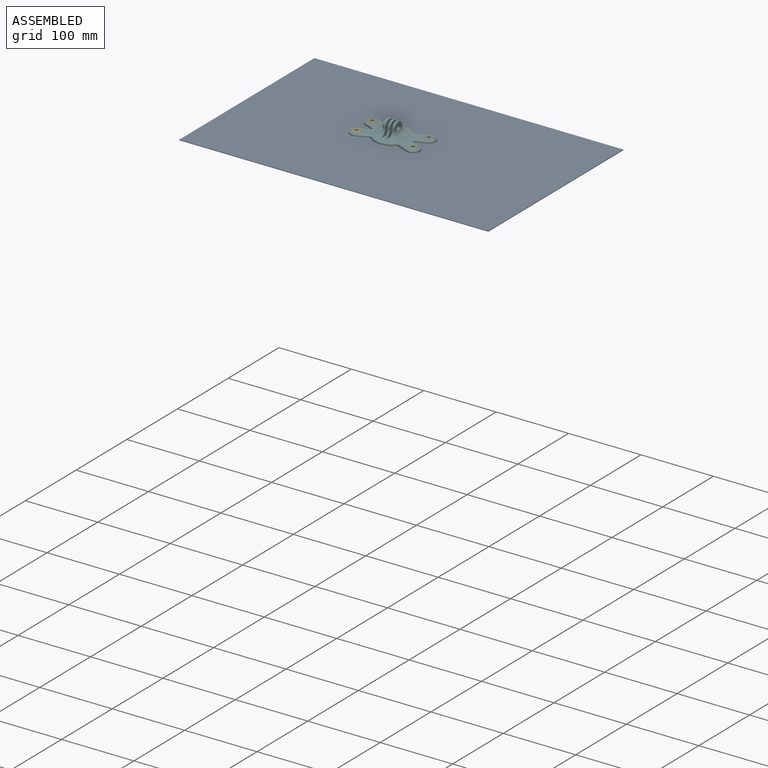
[diagram: assembled view]
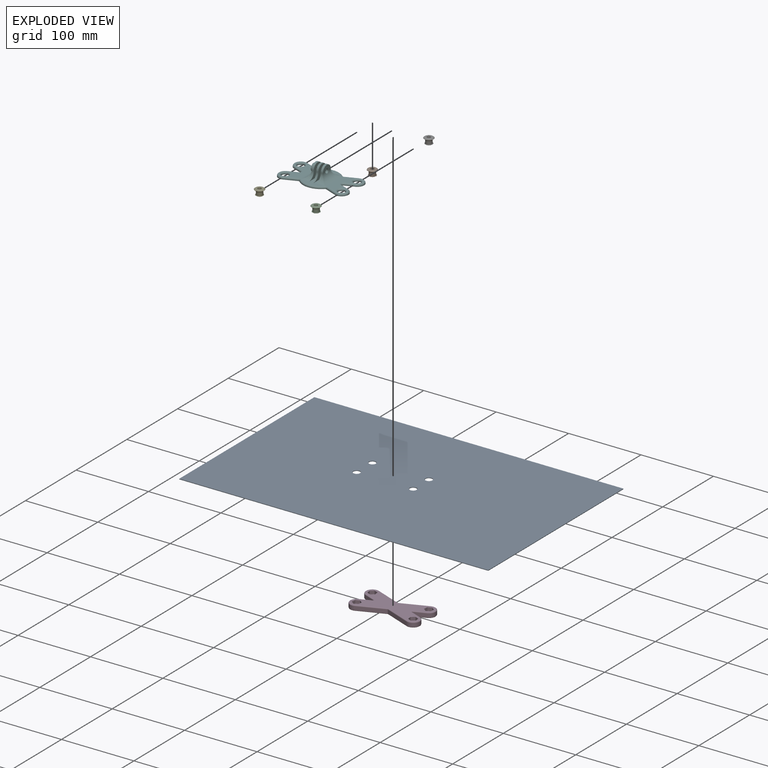
[diagram: exploded view]
GUIDED TOUR — MATED ASSEMBLY (Onshape document 496a4daa4ad05228f871a240, AutoMate assembly 496a4daa4ad05228f871a240_1194d34ab94c4ba6c3498e6a_b3956954b5be397ef15fa4f2_default)

This assembly has 7 components, labeled P0..P6 below (a component is one placed occurrence of a part; the same part can appear more than once), held together by 6 mates. A mate is a constraint between two components; its type names the relative motion it leaves free:
  PLANAR — leaves sliding in the plane through the listed point (normal = the listed direction) and rotation about that normal free,
  SLIDER — leaves translation along the listed axis free.
Axis/direction vectors are unit vectors and 'through' points are millimeter coordinates, both in the assembly's world frame.

MATES
  1. PLANAR "Planar 2": P0 <-> P3, direction (0.000, 0.000, -1.000) through (39.73, -29.23, -52.37) mm
  2. PLANAR "Planar 1": P0 <-> P5, direction (0.000, 0.000, 1.000) through (39.73, -29.23, -51.49) mm
  3. SLIDER "Slider 4": P6 <-> P5, axis (0.000, 0.000, 1.000) through (58.59, -1.88, -48.49) mm
  4. SLIDER "Slider 5": P5 <-> P2, axis (0.000, 0.000, 1.000) through (58.59, -32.88, -48.49) mm
  5. SLIDER "Slider 3": P5 <-> P4, axis (0.000, 0.000, 1.000) through (-19.41, -32.88, -48.49) mm
  6. SLIDER "Slider 2": P1 <-> P5, axis (0.000, 0.000, 1.000) through (-19.41, -1.88, -48.49) mm

ASSEMBLY ORDER
  1. P6 — the base component [order verified]
  2. P1 [order verified]
  3. P0 [order verified]
  4. P4 [order verified]
  5. P2 [order verified]
  6. P3 [order verified]
  7. P5 [order verified]
(P0, P3 verified with a relaxed clearance tolerance: the source model stores slight part interference there.)
Order-tag legend:
  [order verified] — this step's position reverses a verified removal order: the component was checked to insert without passing through the ones already placed.

Of the 7 components, 1 carries the full construction recipe — the FeatureScript program that regenerates the part's solid from scratch; the rest are supplied as boundary geometry only.
Each toured component is shown spotlighted twice — in the assembled view, then in the exploded view, where a leader line traces a displaced component back to its assembled socket (saturated green if recipe-attached, orange if geometry-only; every other component desaturated gray) — followed by its recipe or geometry summary and the mates that hold it.
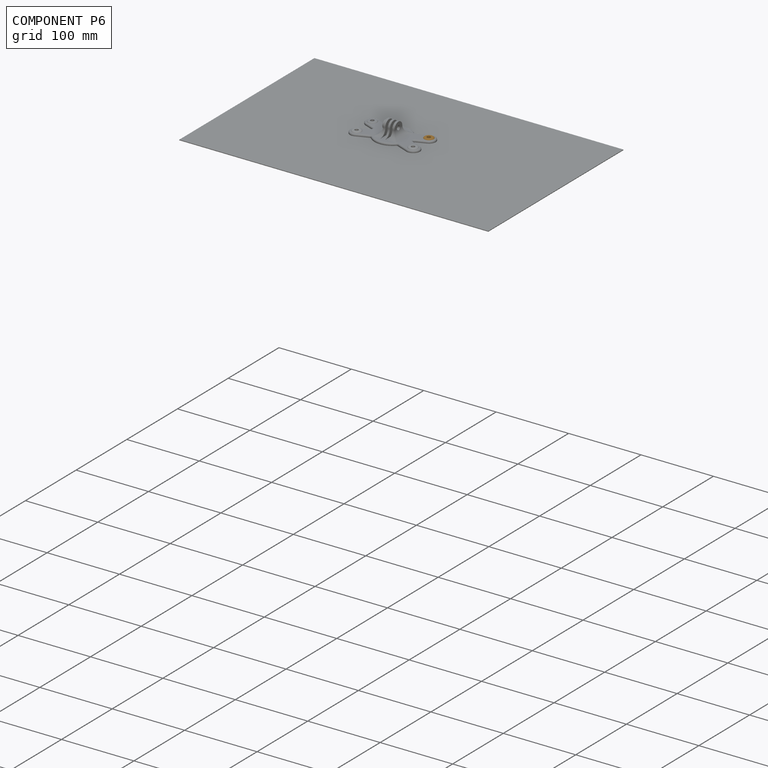
[diagram: component P6 — assembled]
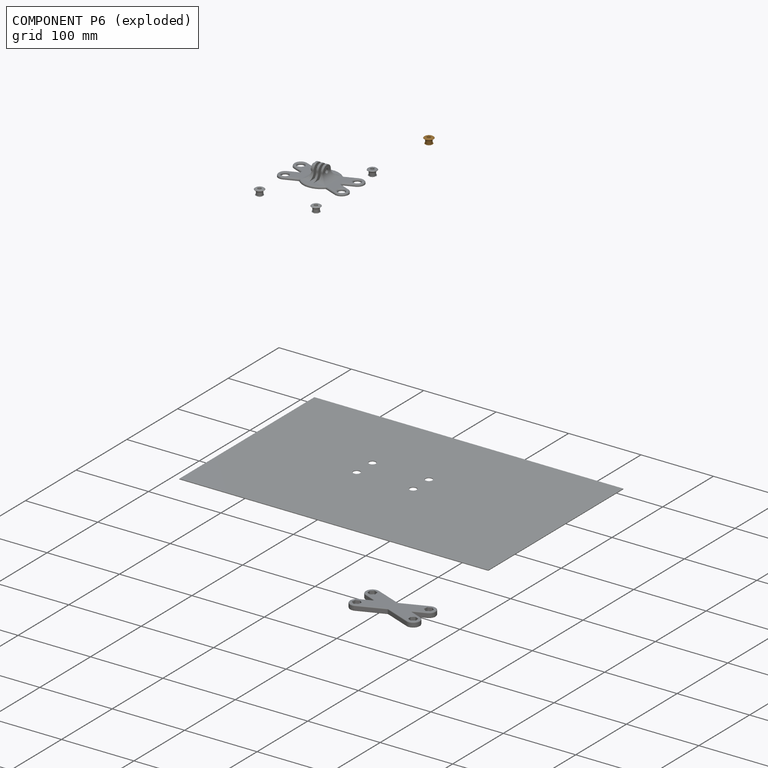
[diagram: component P6 — exploded]
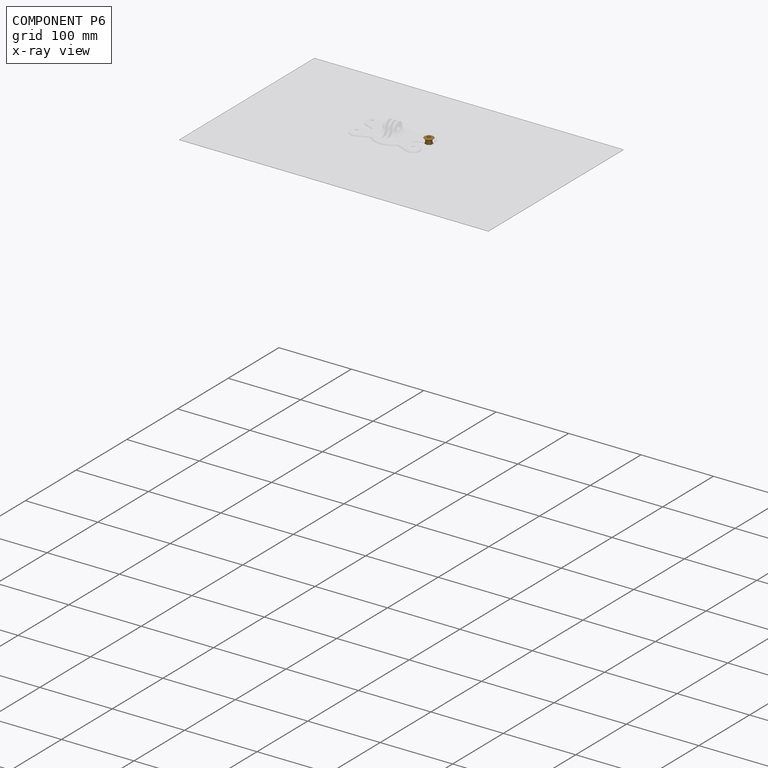
[diagram: component P6 — x-ray view]
COMPONENT P6 — geometry summary (no construction recipe available for this part):
  bounding box: 15.7 x 15.7 x 8.5 mm
  B-rep topology: 1 solid, 11 faces, 40 edges
  volume: 450 mm^3 (22% of its bounding box)
  symmetry: mirror-symmetric across its x mid-plane
Held by: SLIDER mate "Slider 4" to P5.
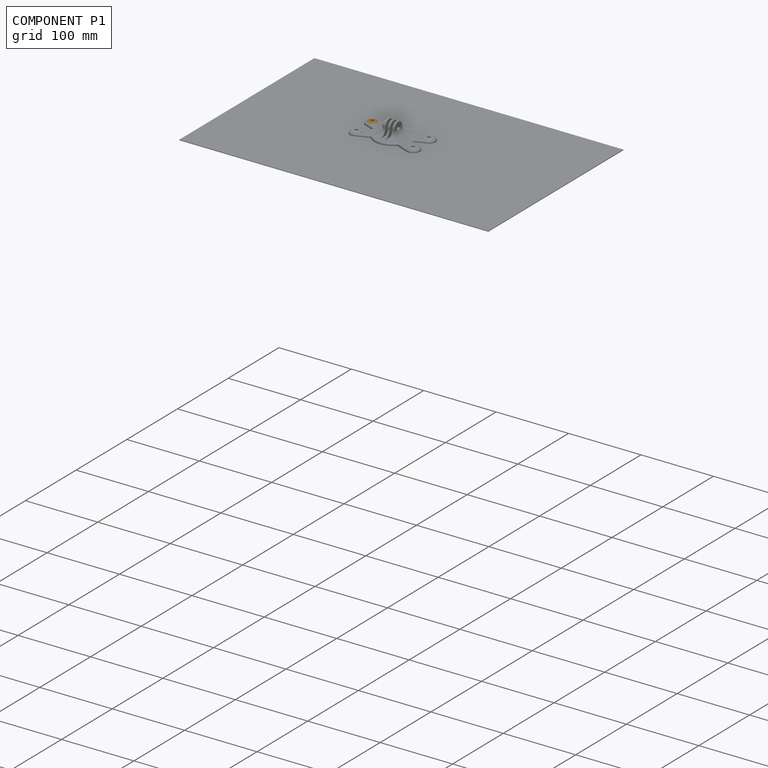
[diagram: component P1 — assembled]
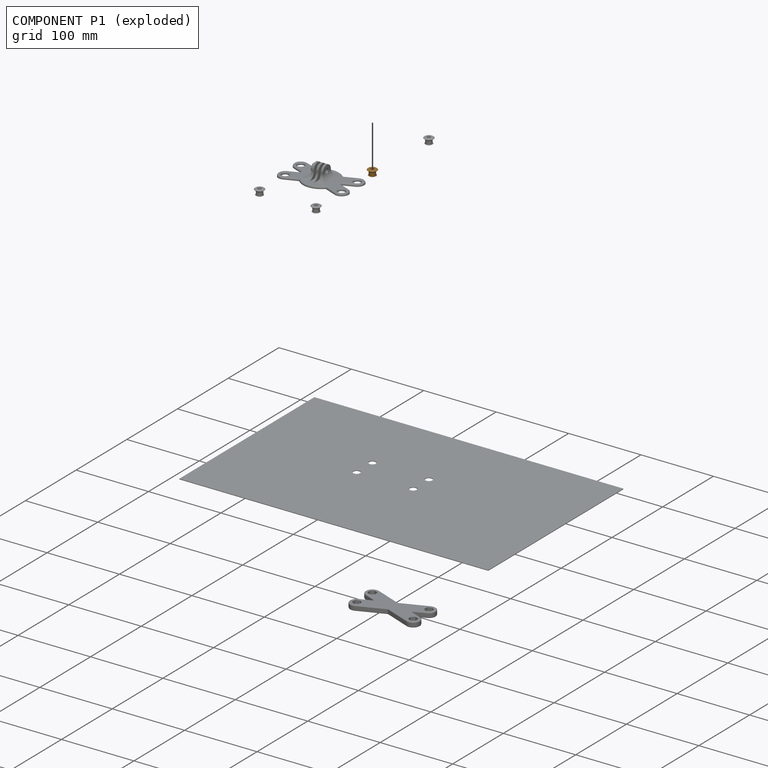
[diagram: component P1 — exploded]
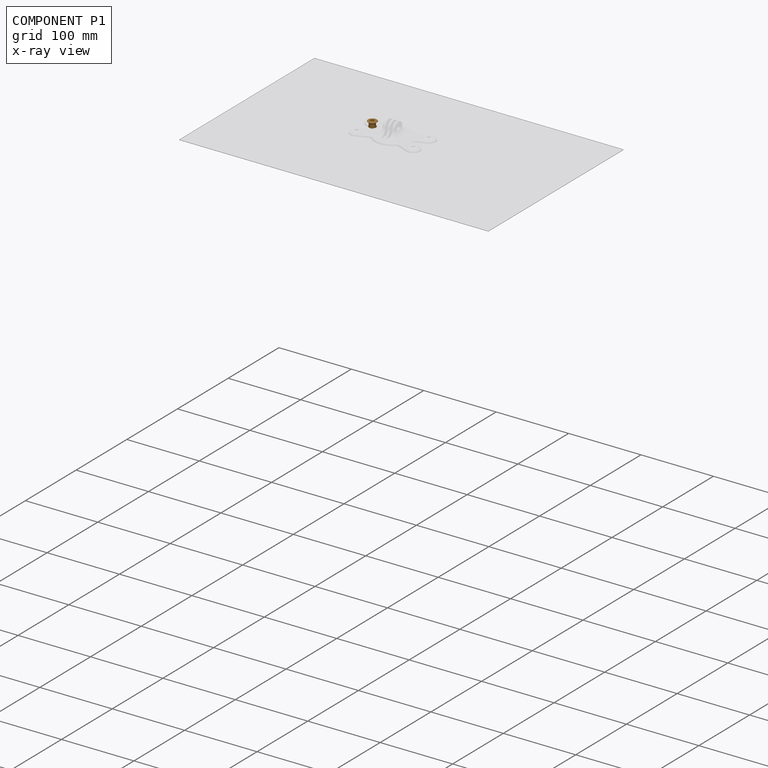
[diagram: component P1 — x-ray view]
COMPONENT P1 — geometry summary (no construction recipe available for this part):
  bounding box: 15.7 x 15.7 x 8.5 mm
  B-rep topology: 1 solid, 11 faces, 40 edges
  volume: 450 mm^3 (22% of its bounding box)
  symmetry: mirror-symmetric across its x mid-plane
Held by: SLIDER mate "Slider 2" to P5.
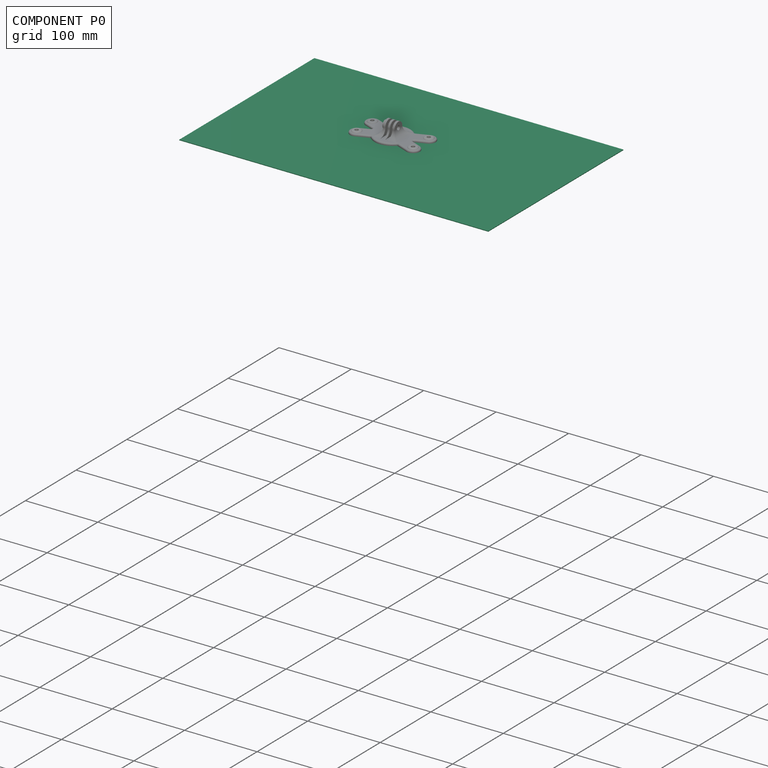
[diagram: component P0 — assembled]
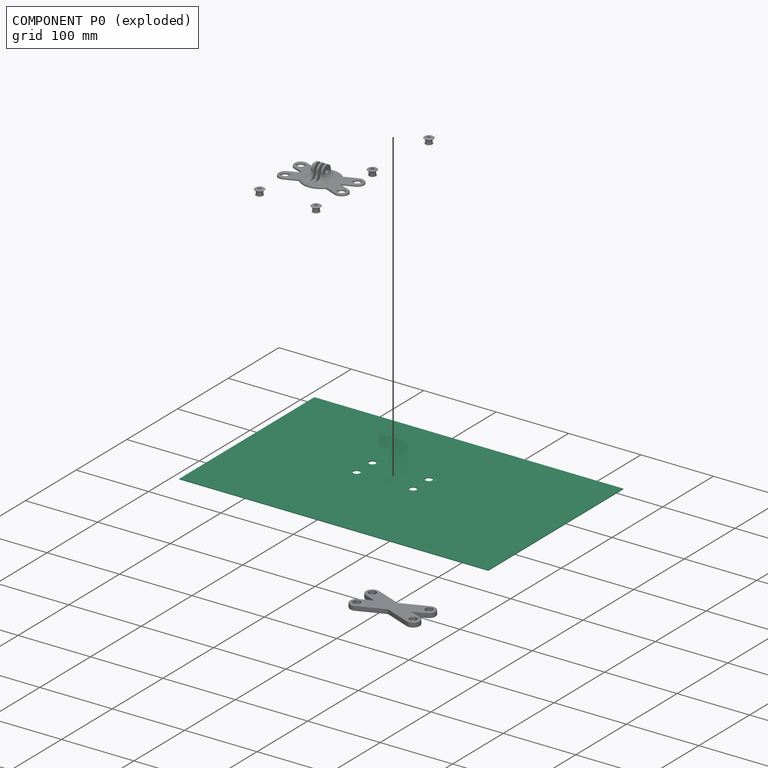
[diagram: component P0 — exploded]
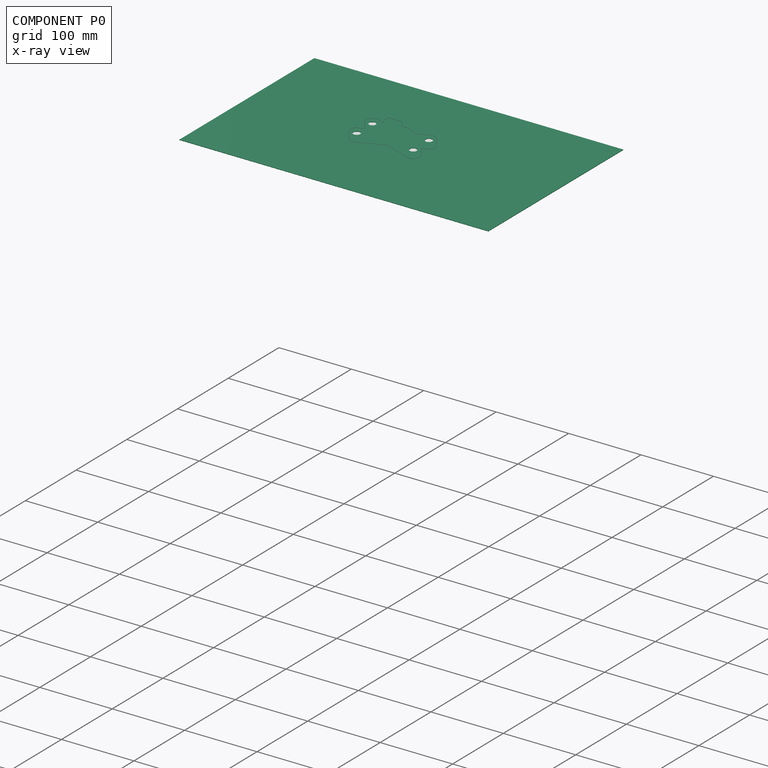
[diagram: component P0 — x-ray view]
COMPONENT P0 — recipe-attached (CADFS 00832311, mesh-verified: the recipe's output STEP matches this component's geometry to below the mesh-comparison resolution (tessellation chordal tolerance ~0.755 mm)).
Held by: PLANAR mate "Planar 2" to P3; PLANAR mate "Planar 1" to P5.
Construction recipe (FeatureScript — the CAD program that rebuilds this solid; sketch coordinates are in the units given by the * unit suffixes, e.g. mm):

FeatureScript 1511;
import(path : "onshape/std/geometry.fs", version : "1511.0");
import(path : "onshape/std/common.fs", version : "1511.0");
const mm = millimeter;
const VERTEX = EntityType.VERTEX;
const EDGE = EntityType.EDGE;
const FACE = EntityType.FACE;
const BODY = EntityType.BODY;
function v(x, y){return vector(x, y);}
function OD(order){return orderDisambiguation(order);}
function OSD(set){return originalSetDisambiguation(set);}
function TD(topology){return topologyDisambiguation(topology);}
function TDD(query){return trueDependencyDisambiguation(query);}
function sQuery(a, b, c) {return sketchEntityQuery(a, b, c);}

annotation { "Feature Type Name" : "Feature", "Feature Type Description" : "" }
export const myFeature = defineFeature(function(context is Context, id is Id, definition is map)
    precondition{}
    {
        {
            var Q0;
            Q0=qCreatedBy(makeId("Top.planeOp"),FACE);
            var sketch = newSketch(context, id + "F0", { "sketchPlane" : qUnion([Q0])});
            skLineSegment(sketch, "E0.bottom", {"start": v(-198.5, 128.15) * mm, "end": v(228.18, 128.15) * mm});
            skLineSegment(sketch, "E0.top", {"start": v(-198.5, -138.3) * mm, "end": v(228.18, -138.3) * mm});
            skLineSegment(sketch, "E0.left", {"start": v(-198.5, 128.15) * mm, "end": v(-198.5, -138.3) * mm});
            skLineSegment(sketch, "E0.right", {"start": v(228.18, 128.15) * mm, "end": v(228.18, -138.3) * mm});
            skLineSegment(sketch, "E1", {"start": v(-224.35, 22.25) * mm, "end": v(262.47, 22.25) * mm, "construction": true});
            skLineSegment(sketch, "E2", {"start": v(-215.92, -8.75) * mm, "end": v(258.53, -8.75) * mm, "construction": true});
            skLineSegment(sketch, "E3", {"start": v(-44.25, 149.38) * mm, "end": v(-44.25, -162.05) * mm, "construction": true});
            skLineSegment(sketch, "E4", {"start": v(33.75, 158.94) * mm, "end": v(33.75, -182.29) * mm, "construction": true});
            skCircle(sketch, "E5", {"center": v(-44.25, 22.25) * mm, "radius": 4.75 * mm});
            skCircle(sketch, "E6", {"center": v(33.75, 22.25) * mm, "radius": 4.75 * mm});
            skCircle(sketch, "E7", {"center": v(33.75, -8.75) * mm, "radius": 4.75 * mm});
            skCircle(sketch, "E8", {"center": v(-44.25, -8.75) * mm, "radius": 4.75 * mm});
            skSolve(sketch);
        }
        {
            var Q0;
            Q0 = qSketchRegion(id + "F0", true);
            extrude(context, id + "F1", {"entities" : qUnion([Q0]), "depth" : .88 * mm, "offsetDistance" : 25 * mm});
        }
    });
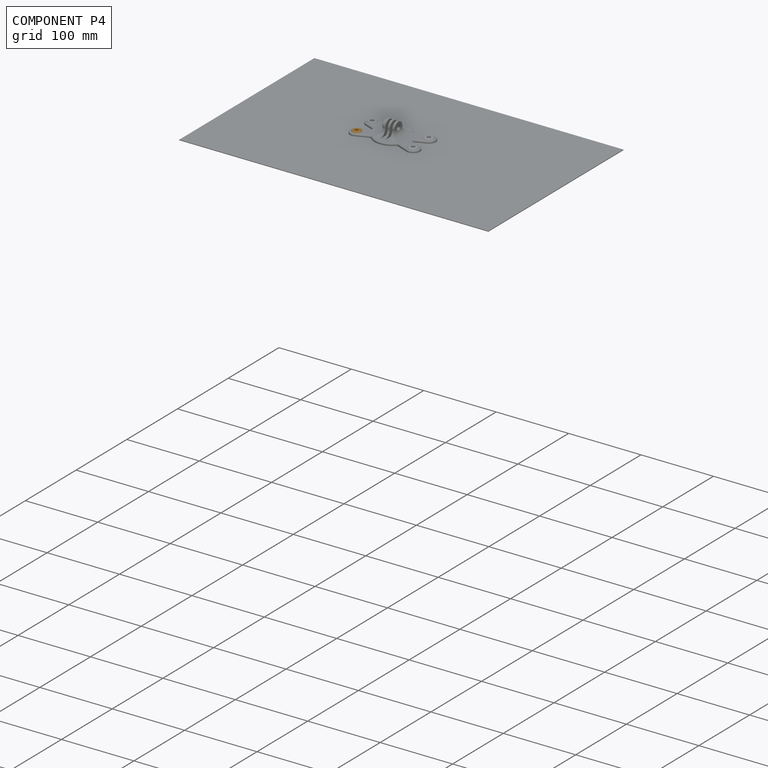
[diagram: component P4 — assembled]
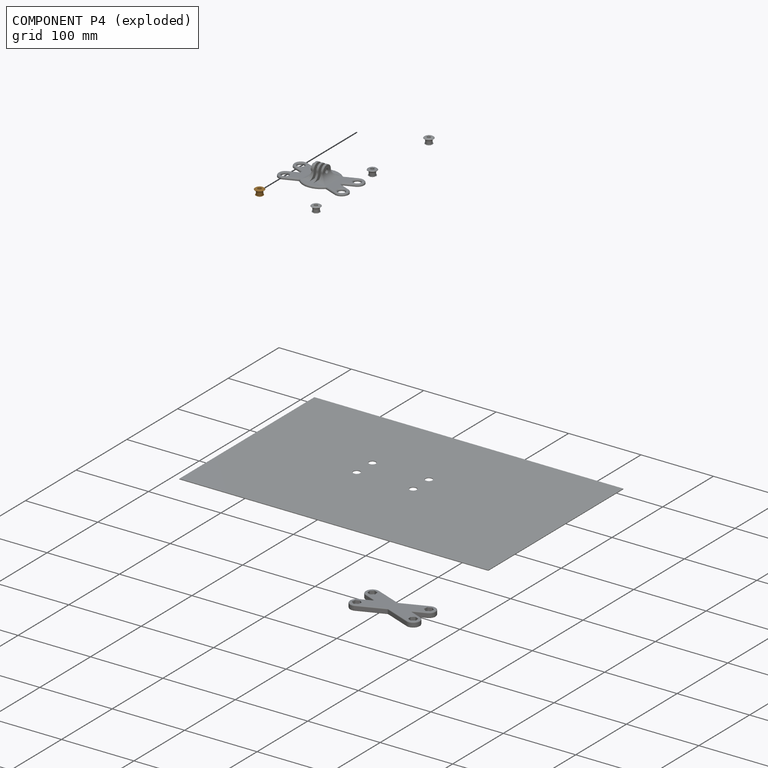
[diagram: component P4 — exploded]
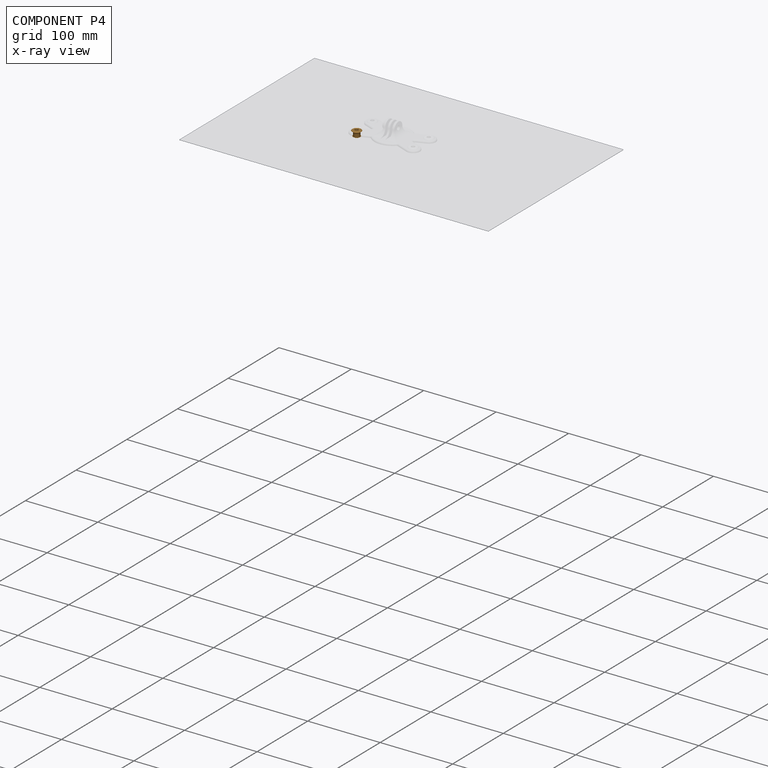
[diagram: component P4 — x-ray view]
COMPONENT P4 — geometry summary (no construction recipe available for this part):
  bounding box: 15.7 x 15.7 x 8.5 mm
  B-rep topology: 1 solid, 11 faces, 40 edges
  volume: 450 mm^3 (22% of its bounding box)
  symmetry: mirror-symmetric across its x mid-plane
Held by: SLIDER mate "Slider 3" to P5.
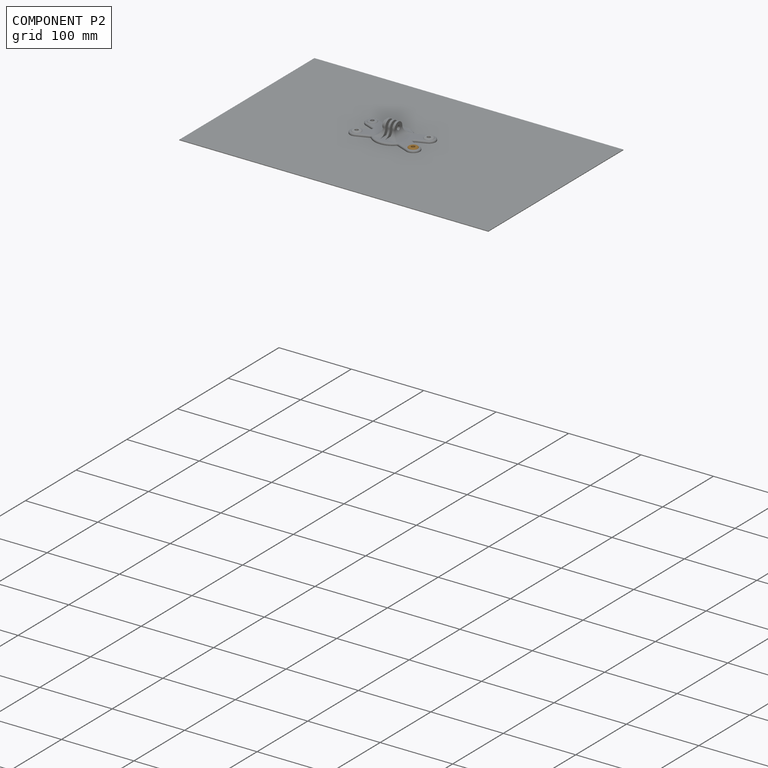
[diagram: component P2 — assembled]
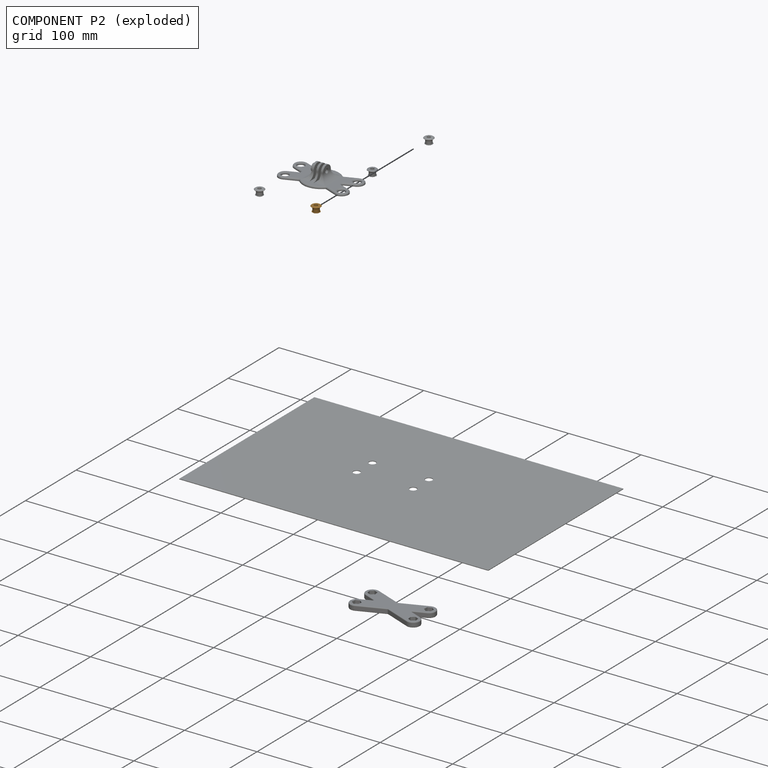
[diagram: component P2 — exploded]
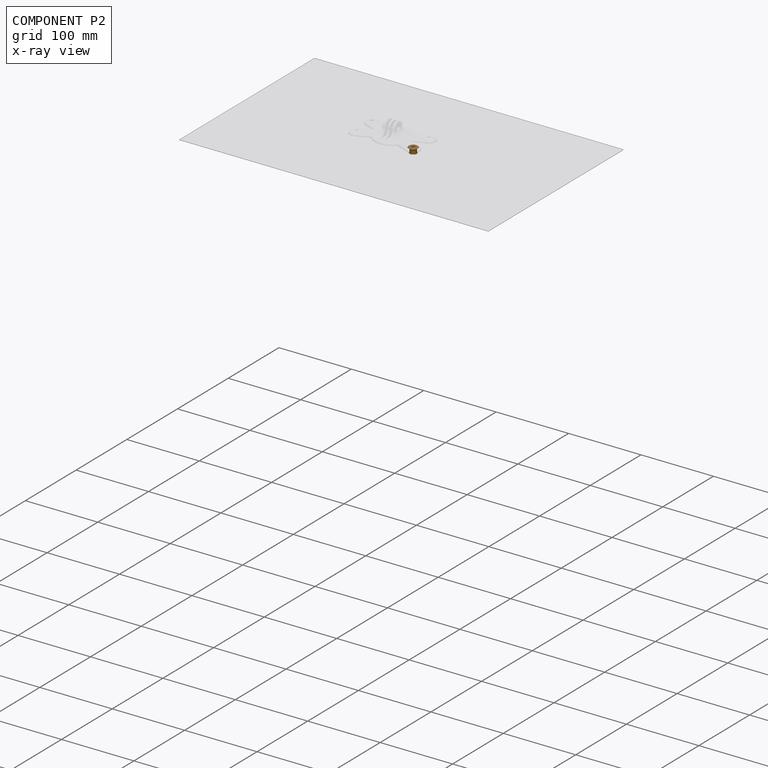
[diagram: component P2 — x-ray view]
COMPONENT P2 — geometry summary (no construction recipe available for this part):
  bounding box: 15.7 x 15.7 x 8.5 mm
  B-rep topology: 1 solid, 11 faces, 40 edges
  volume: 450 mm^3 (22% of its bounding box)
  symmetry: mirror-symmetric across its x mid-plane
Held by: SLIDER mate "Slider 5" to P5.
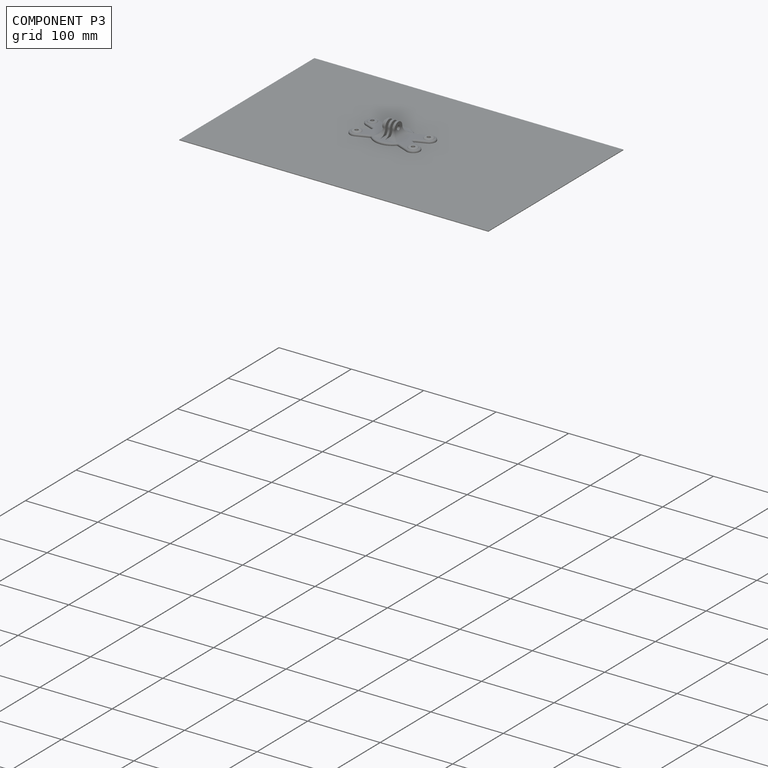
[diagram: component P3 — assembled]
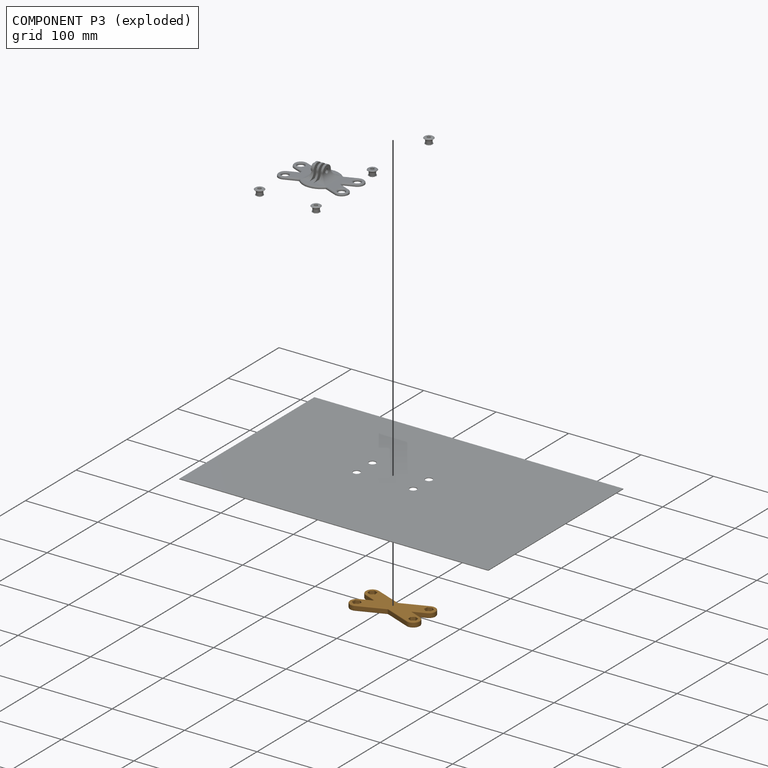
[diagram: component P3 — exploded]
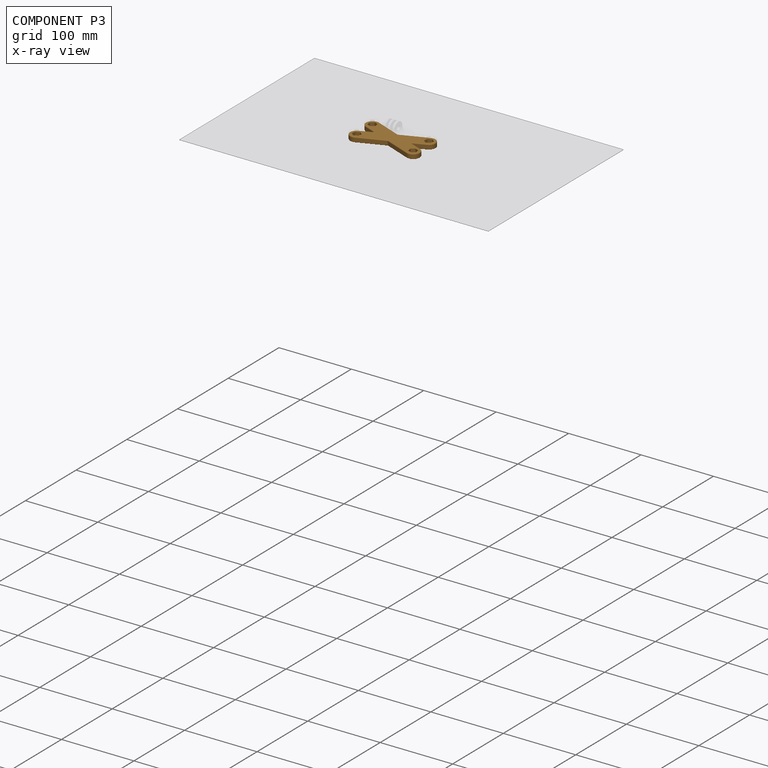
[diagram: component P3 — x-ray view]
COMPONENT P3 — geometry summary (no construction recipe available for this part):
  bounding box: 98.0 x 51.0 x 7.0 mm
  B-rep topology: 1 solid, 79 faces, 378 edges
  volume: 20086 mm^3 (57% of its bounding box)
  symmetry: 2-fold rotationally symmetric about the z axis; mirror-symmetric across its x mid-plane, y mid-plane
Held by: PLANAR mate "Planar 2" to P0.
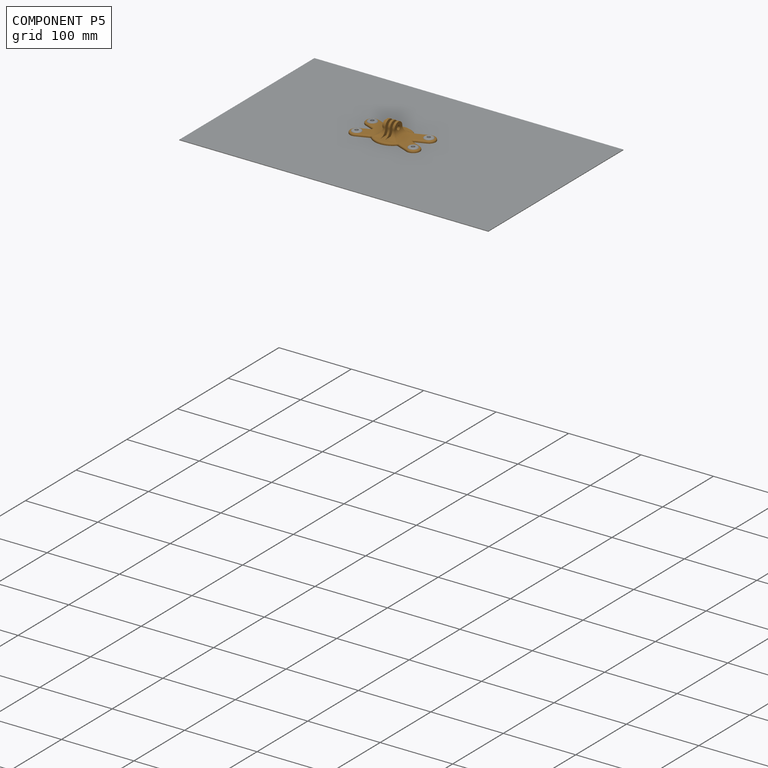
[diagram: component P5 — assembled]
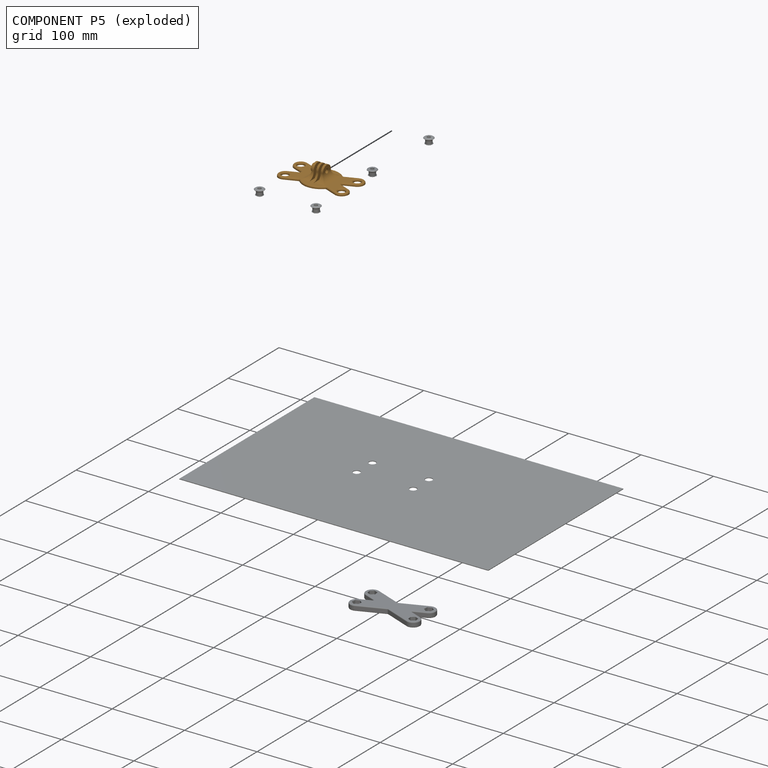
[diagram: component P5 — exploded]
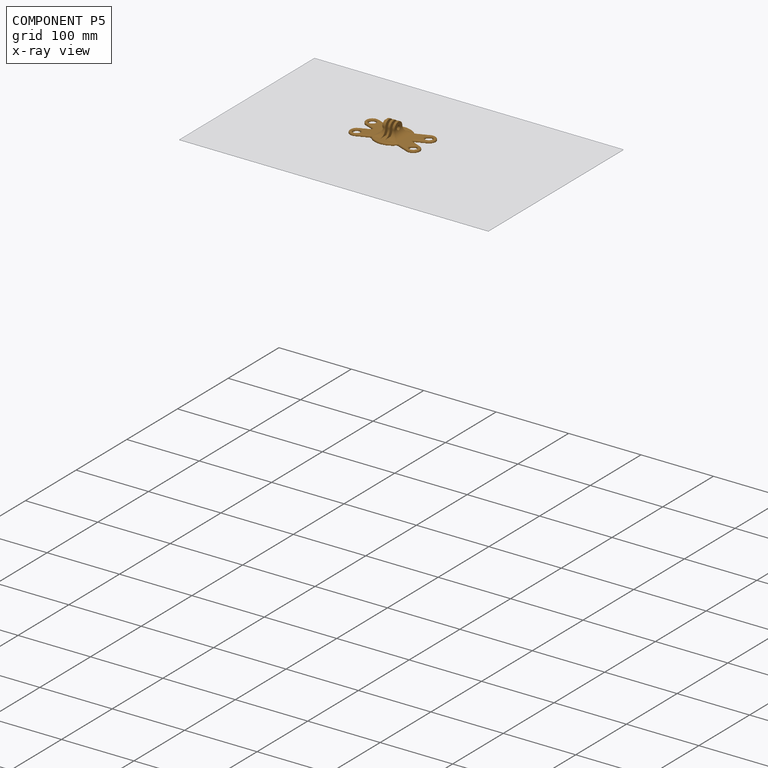
[diagram: component P5 — x-ray view]
COMPONENT P5 — geometry summary (no construction recipe available for this part):
  bounding box: 98.0 x 54.2 x 21.5 mm
  B-rep topology: 1 solid, 97 faces, 482 edges
  volume: 13936 mm^3 (12% of its bounding box)
  symmetry: mirror-symmetric across its y mid-plane
Held by: PLANAR mate "Planar 1" to P0; SLIDER mate "Slider 4" to P6; SLIDER mate "Slider 5" to P2; SLIDER mate "Slider 3" to P4; SLIDER mate "Slider 2" to P1.
PROVENANCE & LICENSES
Assembly (occurrences, transforms, mates, per-part STEP geometry): AutoMate dataset, Zenodo record 7776208, CC0.
Construction recipes: CADFS (HuggingFace VladPyatov/CADFS, CC-BY-4.0, layered over the ABC dataset), FeatureScript reconstruction programs keyed by ABC model id.
Join: ABC meta listings map ABC model id -> Onshape documentId; within a shared document, parts are matched by geometric signature (bounding-box dims + volume at 0.1% relative tolerance, exact B-rep face/solid counts).
Verification: 1 of this assembly's 7 components carries a recipe attachment, and every attachment is mesh-verified: the CADFS STEP and the AutoMate member STEP were compared as meshes in their shared local frame (symmetric sampled-point-to-mesh distance); worst across the 1 attachment: below the mesh-comparison resolution (tessellation chordal tolerance ~0.755 mm) on a 503 mm part.
Renders: orthographic iso camera (az 35 / el 25); the floor grid conveys scale (grid pitch printed in each image; no ruler). In the exploded view each component is displaced by its stored offset vector: the offsets alone carry the explosion direction (mate normal/axis signs are not orientation cues and do not encode it), and separation distances are assigned per mate-chain, not proportionally to assembly-order depth.
